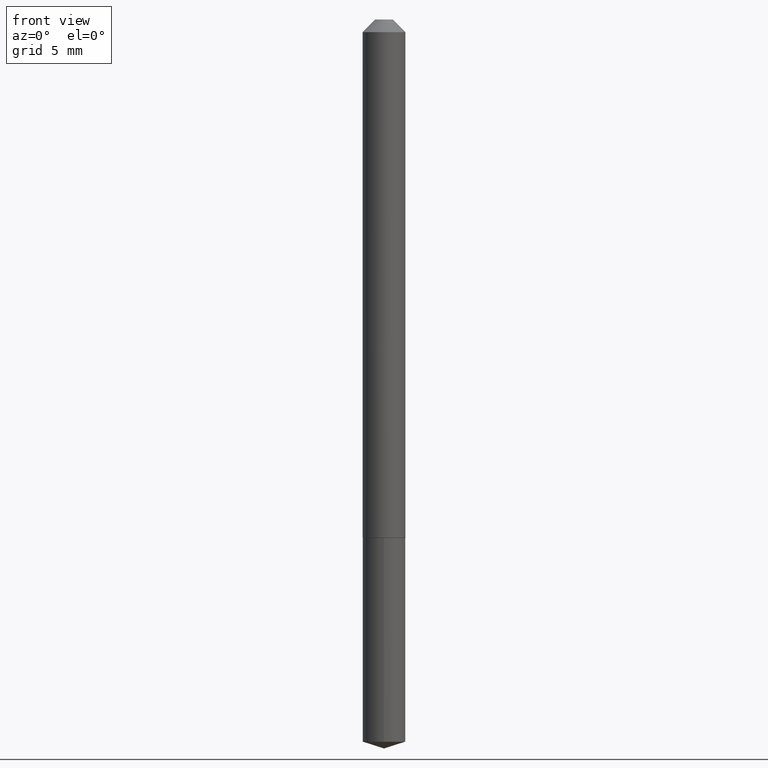
[diagram: clean part render]
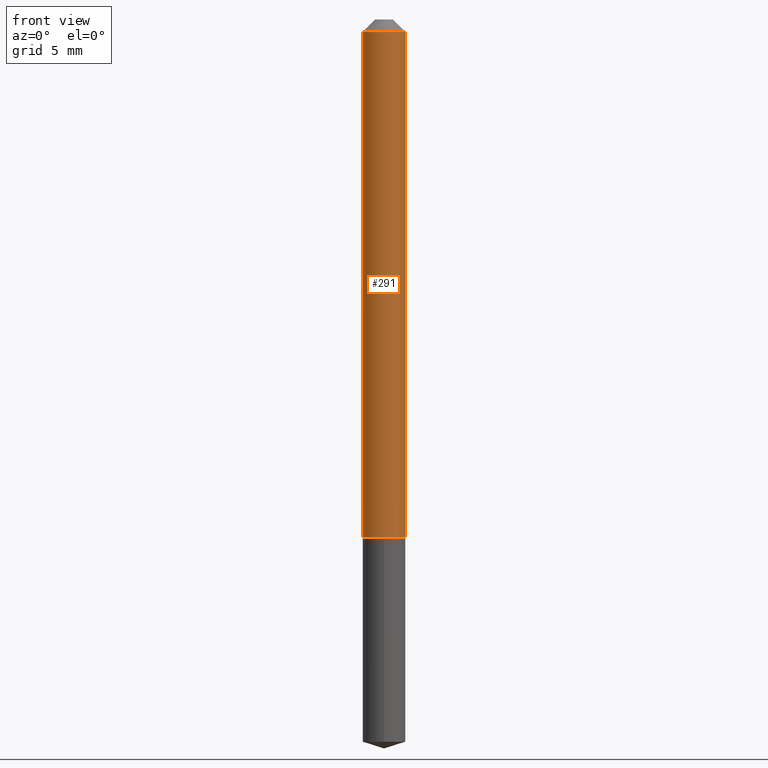
[diagram: same view with one face highlighted and labeled with its STEP entity id]
A machine part, front view. The second image highlights one B-rep face of the part: STEP entity #291.
In plain terms, the highlighted cylindrical surface (edge-blend (fillet) strip) has radius 1.35 mm, axis along (-0, 0, 1).
Its self-contained STEP definition (entity closure, byte-faithful):
#19 = ORIENTED_EDGE ( 'NONE', *, *, #110, .F. ) ;
#24 = CARTESIAN_POINT ( 'NONE',  ( 0.05315000000000016933, -4.864331801276270815E-15, -1.286899999999999933 ) ) ;
#34 = LINE ( 'NONE', #133, #167 ) ;
#38 = CYLINDRICAL_SURFACE ( 'NONE', #100, 0.05315000000000008606 ) ;
#39 = CARTESIAN_POINT ( 'NONE',  ( -0.05315000000000016933, -4.115533870900749124E-15, -1.286899999999999933 ) ) ;
#42 = EDGE_CURVE ( 'NONE', #156, #197, #34, .T. ) ;
#44 = VERTEX_POINT ( 'NONE', #75 ) ;
#50 = ORIENTED_EDGE ( 'NONE', *, *, #132, .F. ) ;
#56 = DIRECTION ( 'NONE',  ( 1.000000000000000000, -6.982962677686267499E-15, 0.000000000000000000 ) ) ;
#57 = DIRECTION ( 'NONE',  ( -2.445468806185136877E-29, 3.491481338843145188E-15, 1.000000000000000000 ) ) ;
#69 = DIRECTION ( 'NONE',  ( -2.445468806185136597E-29, 3.491481338843145583E-15, 1.000000000000000000 ) ) ;
#75 = CARTESIAN_POINT ( 'NONE',  ( -0.05315000000000000280, -1.923494599341550802E-15, -0.03125000000000020123 ) ) ;
#77 = DIRECTION ( 'NONE',  ( -2.445468806185136597E-29, 3.491481338843145583E-15, 1.000000000000000000 ) ) ;
#85 = DIRECTION ( 'NONE',  ( -2.445468806185136877E-29, 3.491481338843145188E-15, 1.000000000000000000 ) ) ;
#91 = CARTESIAN_POINT ( 'NONE',  ( 7.642090019328600035E-31, -1.091087918388489897E-16, -0.03125000000000020123 ) ) ;
#100 = AXIS2_PLACEMENT_3D ( 'NONE', #164, #77, #192 ) ;
#101 = ORIENTED_EDGE ( 'NONE', *, *, #330, .T. ) ;
#110 = EDGE_CURVE ( 'NONE', #311, #44, #126, .T. ) ;
#126 = LINE ( 'NONE', #277, #351 ) ;
#132 = EDGE_CURVE ( 'NONE', #44, #197, #180, .T. ) ;
#133 = CARTESIAN_POINT ( 'NONE',  ( 0.05315000000000008606, -3.711444663190256610E-16, 2.591687956335544229E-30 ) ) ;
#156 = VERTEX_POINT ( 'NONE', #24 ) ;
#164 = CARTESIAN_POINT ( 'NONE',  ( 0.000000000000000000, 0.000000000000000000, 0.000000000000000000 ) ) ;
#167 = VECTOR ( 'NONE', #85, 39.37007874015748143 ) ;
#169 = EDGE_LOOP ( 'NONE', ( #19, #101, #264, #50 ) ) ;
#170 = DIRECTION ( 'NONE',  ( 1.000000000000000000, -6.982962677686274599E-15, 0.000000000000000000 ) ) ;
#180 = CIRCLE ( 'NONE', #239, 0.05315000000000000280 ) ;
#185 = DIRECTION ( 'NONE',  ( -2.445468806185136597E-29, 3.491481338843145583E-15, 1.000000000000000000 ) ) ;
#191 = CIRCLE ( 'NONE', #303, 0.05315000000000016933 ) ;
#192 = DIRECTION ( 'NONE',  ( 1.000000000000000000, -6.982962677686266711E-15, 4.876176775795936353E-29 ) ) ;
#197 = VERTEX_POINT ( 'NONE', #309 ) ;
#238 = CARTESIAN_POINT ( 'NONE',  ( 3.147073806679652455E-29, -4.493187334957244168E-15, -1.286899999999999933 ) ) ;
#239 = AXIS2_PLACEMENT_3D ( 'NONE', #91, #185, #56 ) ;
#243 = FACE_OUTER_BOUND ( 'NONE', #169, .T. ) ;
#264 = ORIENTED_EDGE ( 'NONE', *, *, #42, .T. ) ;
#277 = CARTESIAN_POINT ( 'NONE',  ( -0.05315000000000008606, 3.776534640564938603E-16, -2.614414000470486733E-30 ) ) ;
#291 = ADVANCED_FACE ( 'NONE', ( #243 ), #38, .T. ) ;
#303 = AXIS2_PLACEMENT_3D ( 'NONE', #238, #69, #170 ) ;
#309 = CARTESIAN_POINT ( 'NONE',  ( 0.05315000000000000280, -4.802532581578741700E-16, -0.03125000000000020123 ) ) ;
#311 = VERTEX_POINT ( 'NONE', #39 ) ;
#330 = EDGE_CURVE ( 'NONE', #311, #156, #191, .T. ) ;
#351 = VECTOR ( 'NONE', #57, 39.37007874015748143 ) ;